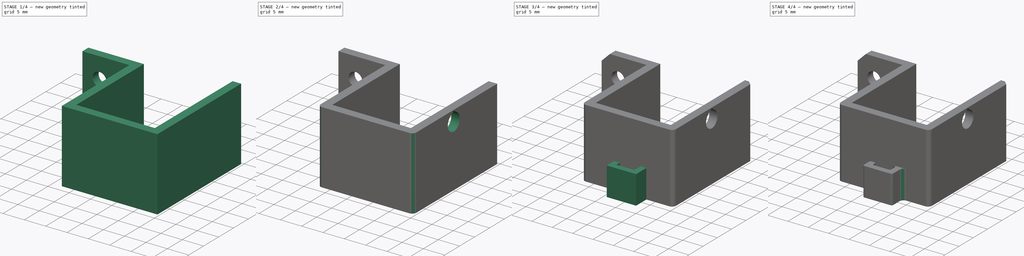
[diagram: build sequence overview — one tinted view per stage of 4, left to right]
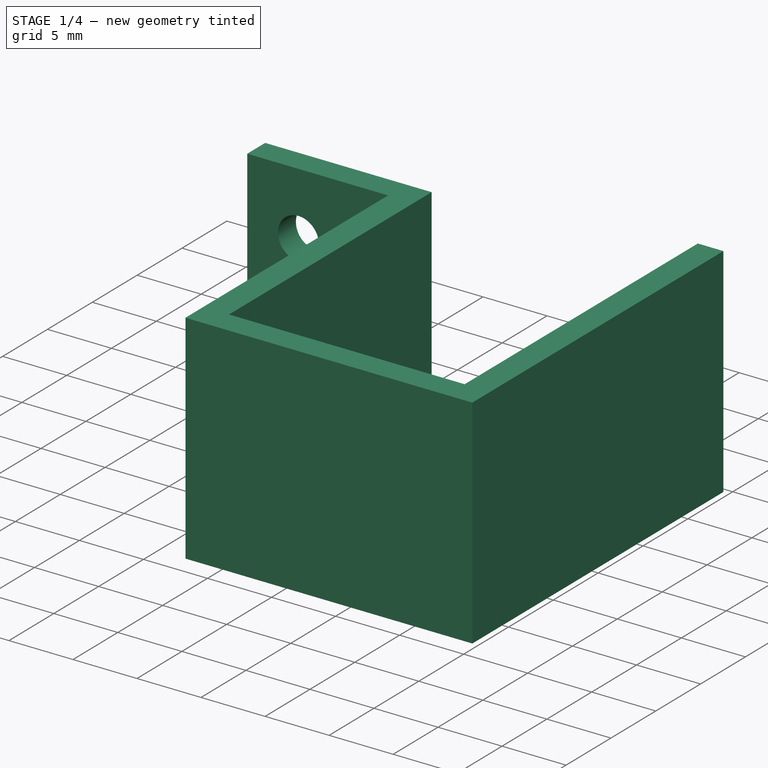
[diagram: stage 1 of 4 — iso view after this stage's code; geometry added in this stage tinted green]
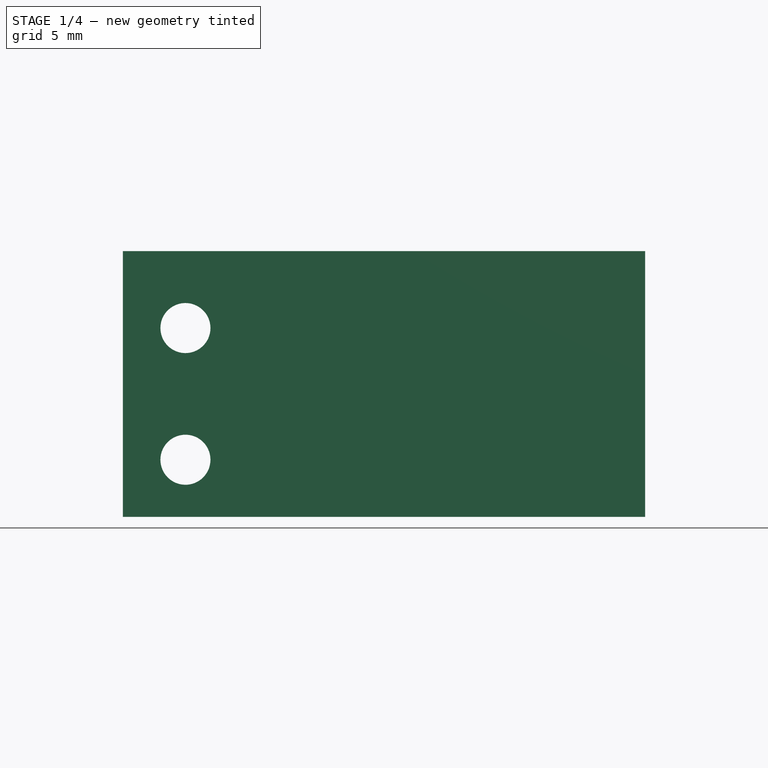
[diagram: stage 1 of 4 — front view after this stage's code; geometry added in this stage tinted green]
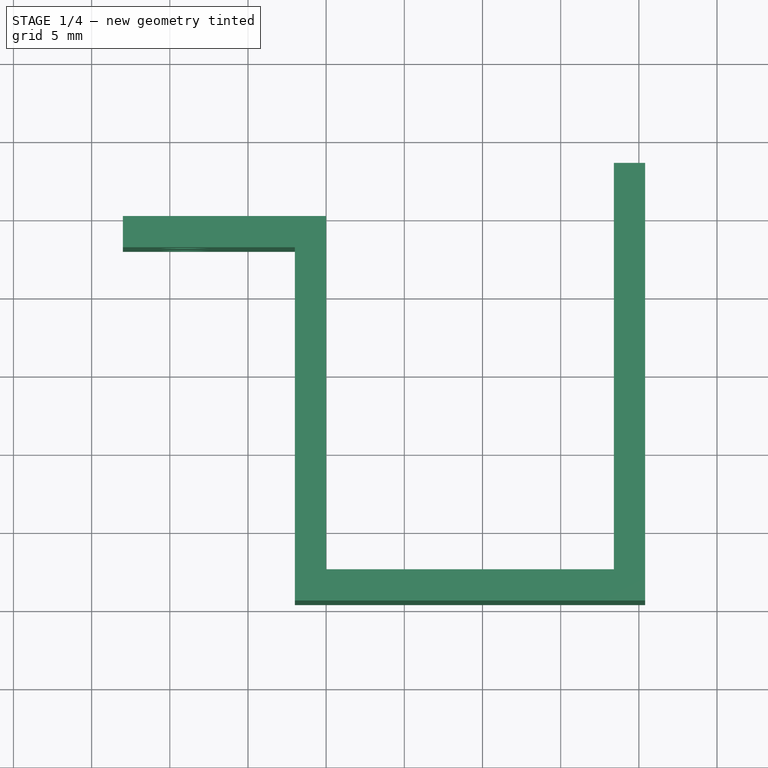
[diagram: stage 1 of 4 — top view after this stage's code; geometry added in this stage tinted green]
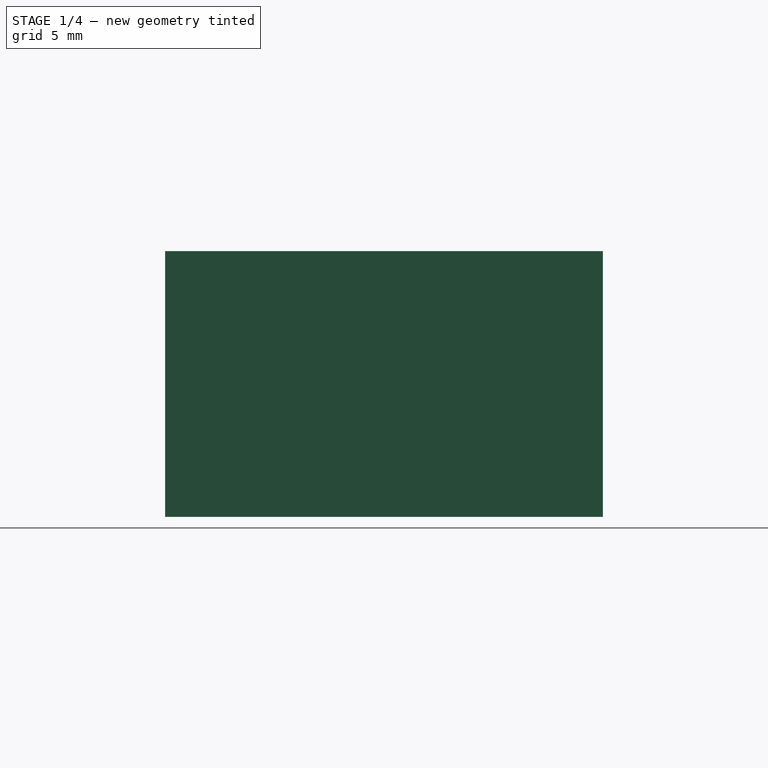
[diagram: stage 1 of 4 — right view after this stage's code; geometry added in this stage tinted green]
FCSTD DOCUMENT  (FreeCAD 0.18R4 (GitTag))
Label: montura_motor
License: All rights reserved
LicenseURL: http://en.wikipedia.org/wiki/All_rights_reserved
objects: Sketcher::SketchObject×4, PartDesign::Fillet×3, PartDesign::Pad×2, PartDesign::Pocket×2, PartDesign::Chamfer×2, PartDesign::Body×1
note: 18 computed .brp shape members not serialized (recipe doc carries the construction recipe); baked Part::Feature solids carry a one-line shape summary decoded from their .brp

FEATURE [Sketcher::SketchObject] Sketch
  MapMode = 5
  Support = -> [XY_Plane]
  sketch-geometry (10):
    g0: LineSegment StartX=-2 StartY=-24.6 StartZ=0 EndX=-2 EndY=-2 EndZ=0
    g1: LineSegment StartX=-2 StartY=-2 StartZ=0 EndX=-13 EndY=-2 EndZ=0
    g2: LineSegment StartX=-13 StartY=-2 StartZ=0 EndX=-13 EndY=0 EndZ=0
    g3: LineSegment StartX=-13 StartY=0 StartZ=0 EndX=0 EndY=0 EndZ=0
    g4: LineSegment StartX=0 StartY=0 StartZ=0 EndX=0 EndY=-22.6 EndZ=0
    g5: LineSegment StartX=0 StartY=-22.6 StartZ=0 EndX=18.4 EndY=-22.6 EndZ=0
    g6: LineSegment StartX=18.4 StartY=-22.6 StartZ=0 EndX=18.4 EndY=3.4 EndZ=0
    g7: LineSegment StartX=18.4 StartY=3.4 StartZ=0 EndX=20.4 EndY=3.4 EndZ=0
    g8: LineSegment StartX=20.4 StartY=3.4 StartZ=0 EndX=20.4 EndY=-24.6 EndZ=0
    g9: LineSegment StartX=-2 StartY=-24.6 StartZ=0 EndX=20.4 EndY=-24.6 EndZ=0
  constraints (29):
    c: Coincident(g0,g1)
    c: Coincident(g1,g2)
    c: Coincident(g2,g3)
    c: Coincident(g3,g4)
    c: Coincident(g4,g5)
    c: Coincident(g5,g6)
    c: Coincident(g6,g7)
    c: Coincident(g7,g8)
    c: Coincident(g8,g9)
    c: Coincident(g0,g9)
    c: Horizontal(g7)
    c: Horizontal(g9)
    c: Horizontal(g5)
    c: Horizontal(g3)
    c: Horizontal(g1)
    c: Vertical(g2)
    c: Vertical(g4)
    c: Vertical(g0)
    c: Vertical(g6)
    c: Vertical(g8)
    c: Distance(g5) = 18.4
    c: Distance(g4) = 22.6
    c: Distance(g2) = 2
    c: DistanceX(g0,g4) = 2
    c: DistanceX(g5,g8) = 2
    c: DistanceY(g0,g4) = 2
    c: Distance(g6) = 26
    c: Distance(g3) = 13
    c: Coincident(g3,g-1)
FEATURE [PartDesign::Pad] Pad
  Length = 17
  Length2 = 100
  Profile = -> Sketch
  Type = 0
FEATURE [Sketcher::SketchObject] Sketch001
  MapMode = 5
  Placement = pos=(0,-2,0) rot=(1,0,0;1.5708rad)
  Support = -> [Pad]
  sketch-geometry (2):
    g0: Circle CenterX=-9 CenterY=3.65577 CenterZ=0 NormalX=0 NormalY=0 NormalZ=1 AngleXU=0 Radius=1.6
    g1: Circle CenterX=-9 CenterY=12.0779 CenterZ=0 NormalX=0 NormalY=0 NormalZ=1 AngleXU=0 Radius=1.6
  constraints (4):
    c: Radius(g1) = 1.6
    c: Equal(g1,g0)
    c: DistanceX(g0,g-1) = 9
    c: Vertical(g0,g1)
FEATURE [PartDesign::Pocket] Pocket
  BaseFeature = -> Pad
  Length = 5
  Length2 = 100
  Profile = -> Sketch001
  Type = 0
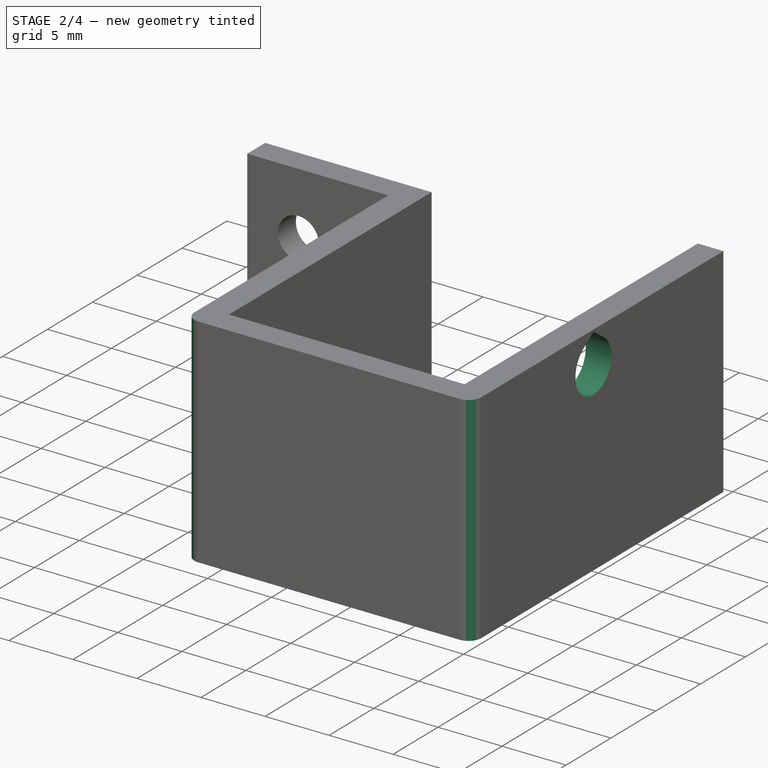
[diagram: stage 2 of 4 — iso view after this stage's code; geometry added in this stage tinted green]
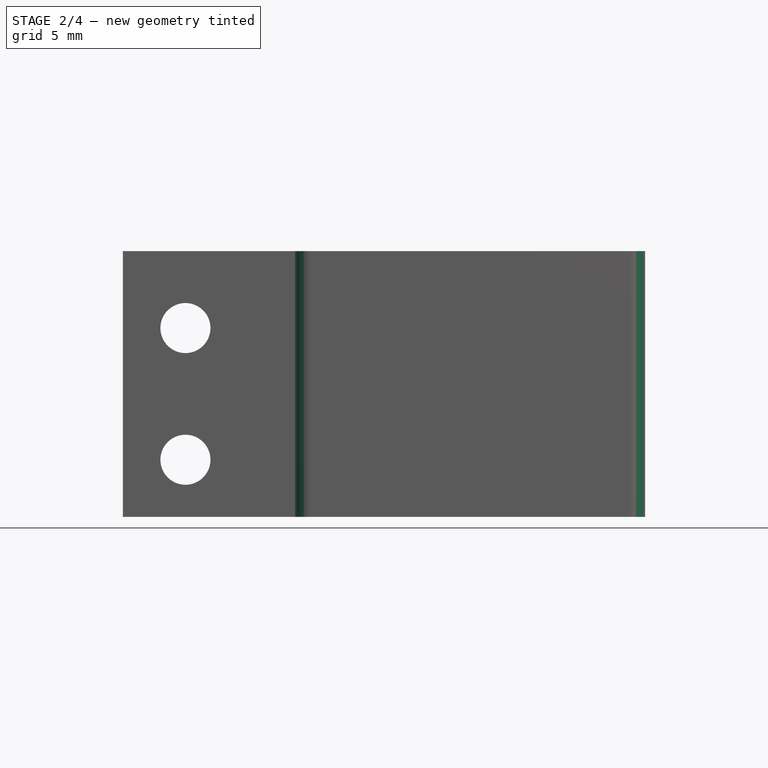
[diagram: stage 2 of 4 — front view after this stage's code; geometry added in this stage tinted green]
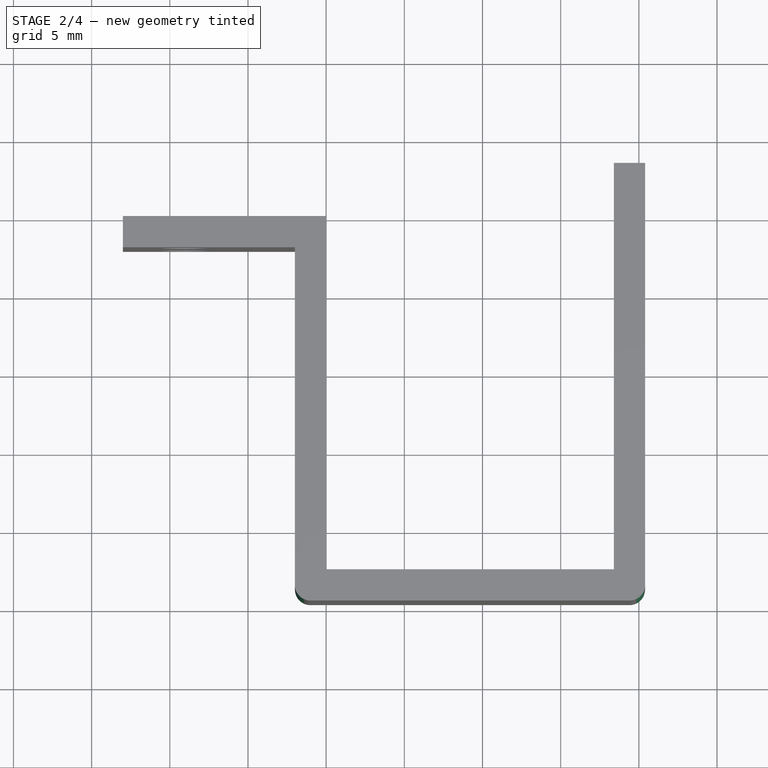
[diagram: stage 2 of 4 — top view after this stage's code; geometry added in this stage tinted green]
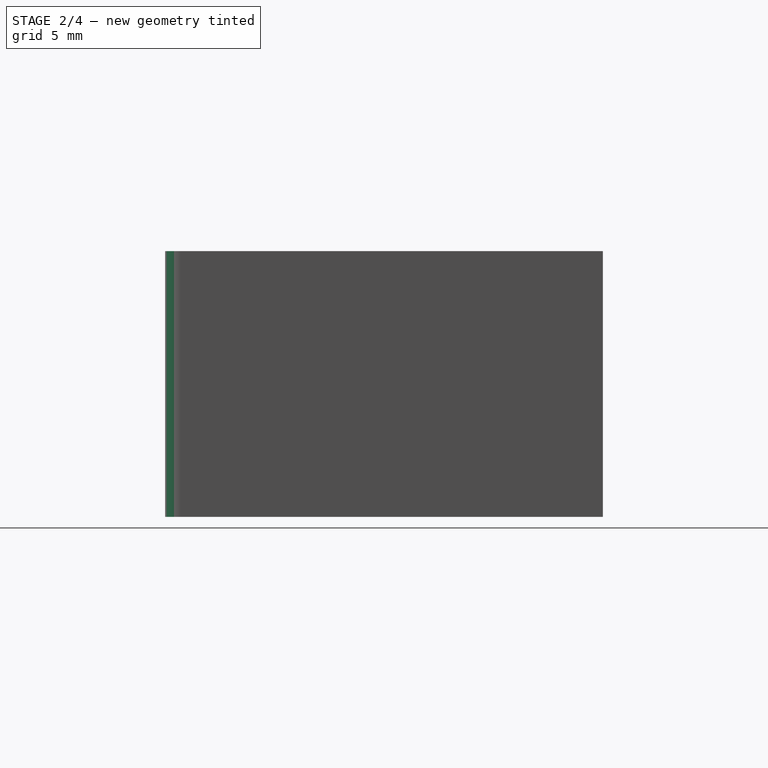
[diagram: stage 2 of 4 — right view after this stage's code; geometry added in this stage tinted green]
FEATURE [Sketcher::SketchObject] Sketch003
  MapMode = 5
  Placement = pos=(18.4,0,0) rot=(0.57735,-0.57735,-0.57735;2.0944rad)
  sketch-geometry (3):
    g0: ArcOfCircle CenterX=11.1 CenterY=14.4 CenterZ=0 NormalX=0 NormalY=0 NormalZ=1 AngleXU=0 Radius=2 StartAngle=2.18166 EndAngle=7.24312
    g1: LineSegment StartX=9.95285 StartY=16.0383 StartZ=0 EndX=11.1 EndY=16.8415 EndZ=0
    g2: LineSegment StartX=11.1 StartY=16.8415 StartZ=0 EndX=12.2472 EndY=16.0383 EndZ=0
  constraints (8):
    c: DistanceX(g-1,g0) = 11.1
    c: Radius(g0) = 2
    c: DistanceY(g-1,g0) = 14.4
    c: Coincident(g1,g2)
    c: Tangent(g0,g1) = 1.5708
    c: Tangent(g0,g2) = 1.5708
    c: Vertical(g0,g1)
    c: Angle(g2,g-1) = 0.610865
FEATURE [PartDesign::Pocket] Pocket002
  BaseFeature = -> Pocket
  Length = 5
  Length2 = 100
  Profile = -> Sketch003
  Type = 0
FEATURE [PartDesign::Fillet] Fillet
  Base = -> Pocket002 [Edge1,Edge5]
  BaseFeature = -> Pocket002
  Radius = 1
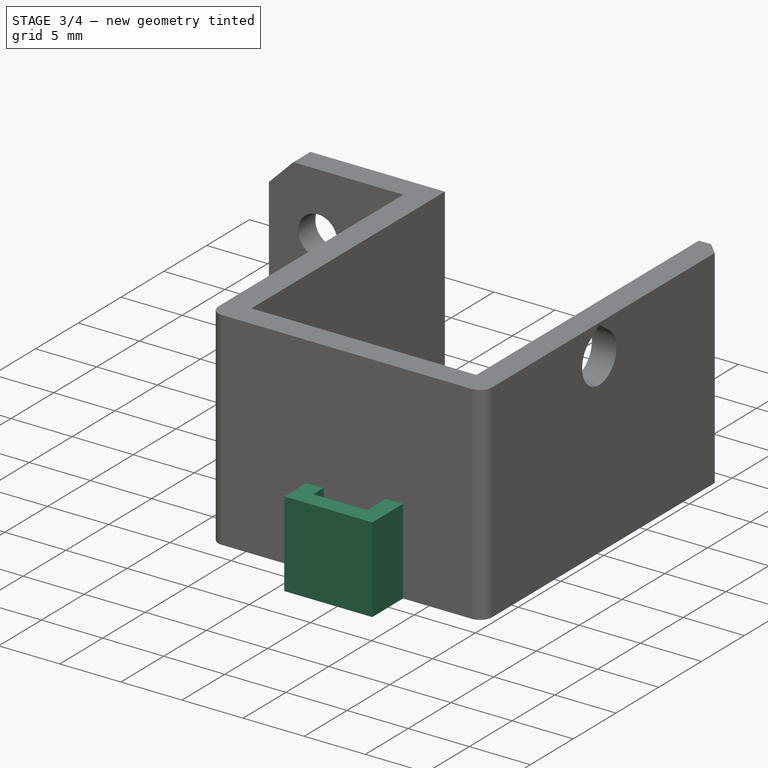
[diagram: stage 3 of 4 — iso view after this stage's code; geometry added in this stage tinted green]
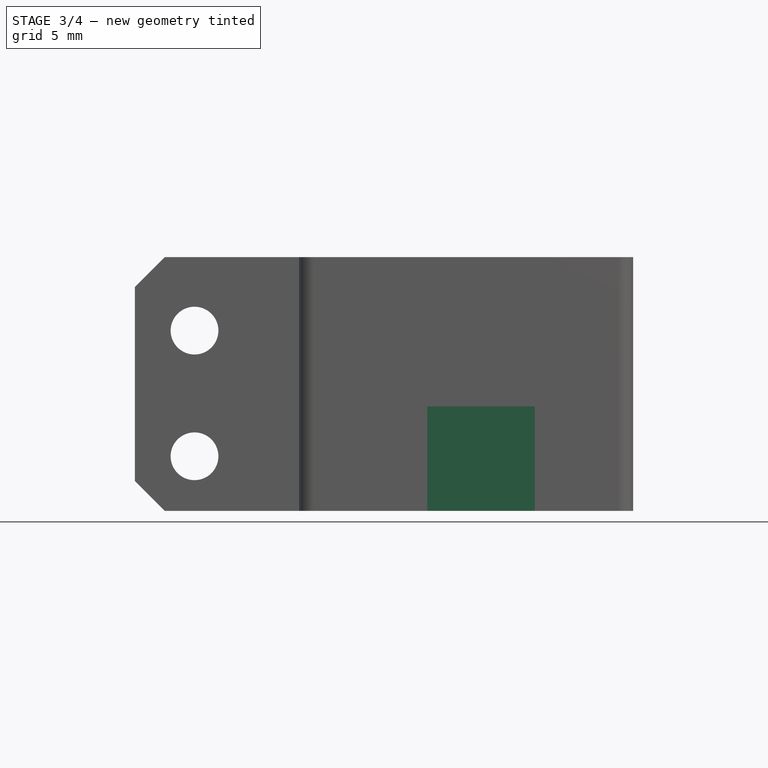
[diagram: stage 3 of 4 — front view after this stage's code; geometry added in this stage tinted green]
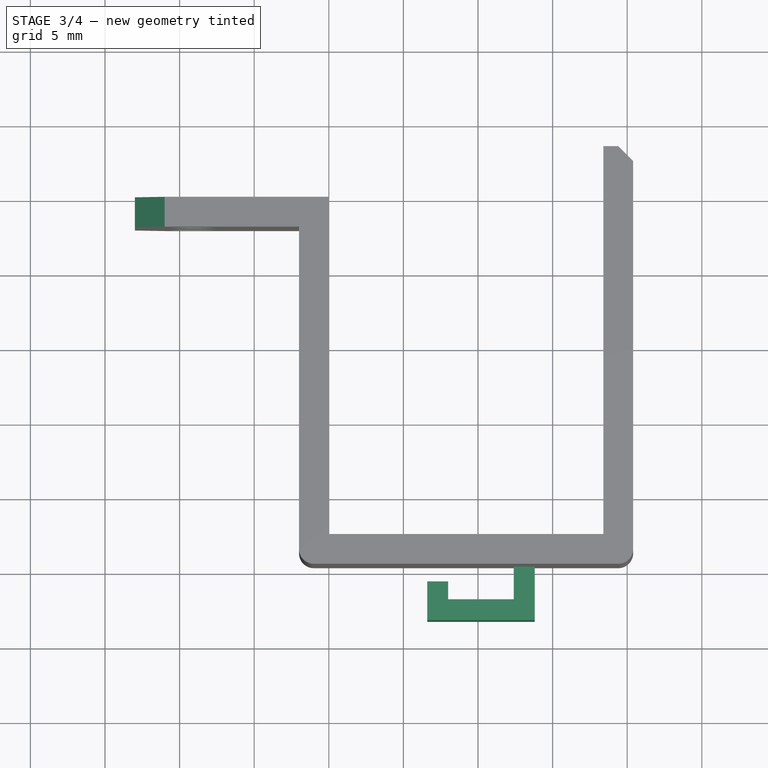
[diagram: stage 3 of 4 — top view after this stage's code; geometry added in this stage tinted green]
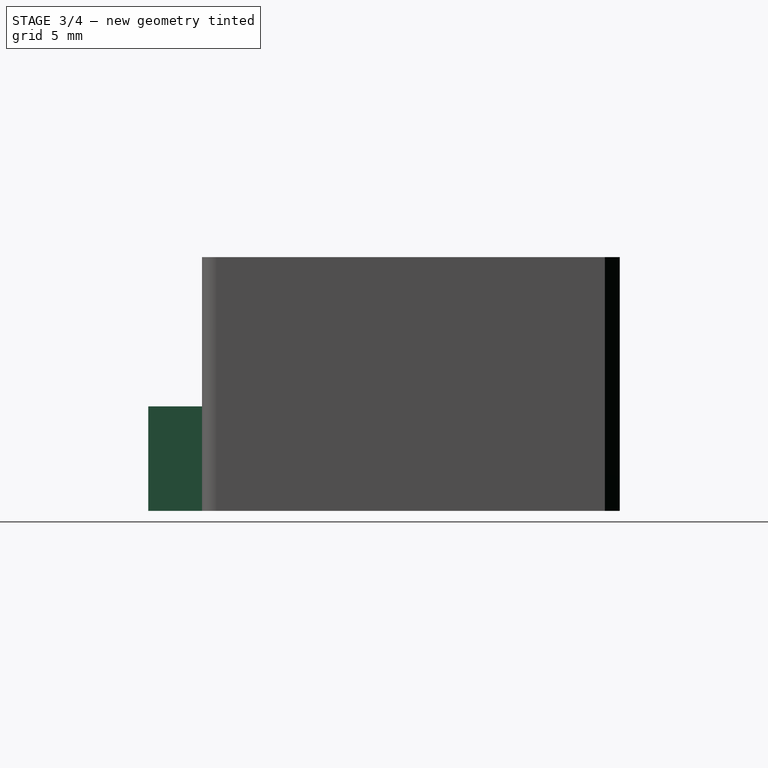
[diagram: stage 3 of 4 — right view after this stage's code; geometry added in this stage tinted green]
FEATURE [PartDesign::Chamfer] Chamfer001
  Base = -> Fillet [Edge23,Edge8]
  BaseFeature = -> Fillet
  Size = 2
FEATURE [PartDesign::Chamfer] Chamfer002
  Base = -> Chamfer001 [Edge45]
  BaseFeature = -> Chamfer001
  Size = 1
FEATURE [Sketcher::SketchObject] Sketch004
  MapMode = 5
  Placement = pos=(0,0,0) rot=(1,0,0;3.14159rad)
  Support = -> [Chamfer002]
  sketch-geometry (8):
    g0: LineSegment StartX=13.8 StartY=24.6 StartZ=0 EndX=12.4 EndY=24.6 EndZ=0
    g1: LineSegment StartX=13.8 StartY=24.6 StartZ=0 EndX=13.8 EndY=28.2 EndZ=0
    g2: LineSegment StartX=13.8 StartY=28.2 StartZ=0 EndX=6.6 EndY=28.2 EndZ=0
    g3: LineSegment StartX=6.6 StartY=28.2 StartZ=0 EndX=6.6 EndY=25.6 EndZ=0
    g4: LineSegment StartX=6.6 StartY=25.6 StartZ=0 EndX=8 EndY=25.6 EndZ=0
    g5: LineSegment StartX=8 StartY=25.6 StartZ=0 EndX=8 EndY=26.8 EndZ=0
    g6: LineSegment StartX=8 StartY=26.8 StartZ=0 EndX=12.4 EndY=26.8 EndZ=0
    g7: LineSegment StartX=12.4 StartY=26.8 StartZ=0 EndX=12.4 EndY=24.6 EndZ=0
  constraints (24):
    c: Horizontal(g0)
    c: Distance(g0) = 1.4
    c: DistanceY(g-1,g0) = 24.6
    c: DistanceX(g-1,g0) = 12.4
    c: Coincident(g1,g2)
    c: Coincident(g2,g3)
    c: Coincident(g3,g4)
    c: Coincident(g4,g5)
    c: Coincident(g5,g6)
    c: Coincident(g6,g7)
    c: Coincident(g0,g7)
    c: Vertical(g7)
    c: Vertical(g5)
    c: Vertical(g3)
    c: Horizontal(g4)
    c: Horizontal(g6)
    c: Horizontal(g2)
    c: Vertical(g1)
    c: Distance(g1) = 3.6
    c: Distance(g2) = 7.2
    c: Coincident(g0,g1)
    c: Distance(g3) = 2.6
    c: Equal(g4,g0)
    c: DistanceY(g6,g1) = 1.4
FEATURE [PartDesign::Pad] Pad001
  BaseFeature = -> Chamfer002
  Length = 7
  Length2 = 100
  Profile = -> Sketch004
  Reversed = true
  Type = 0
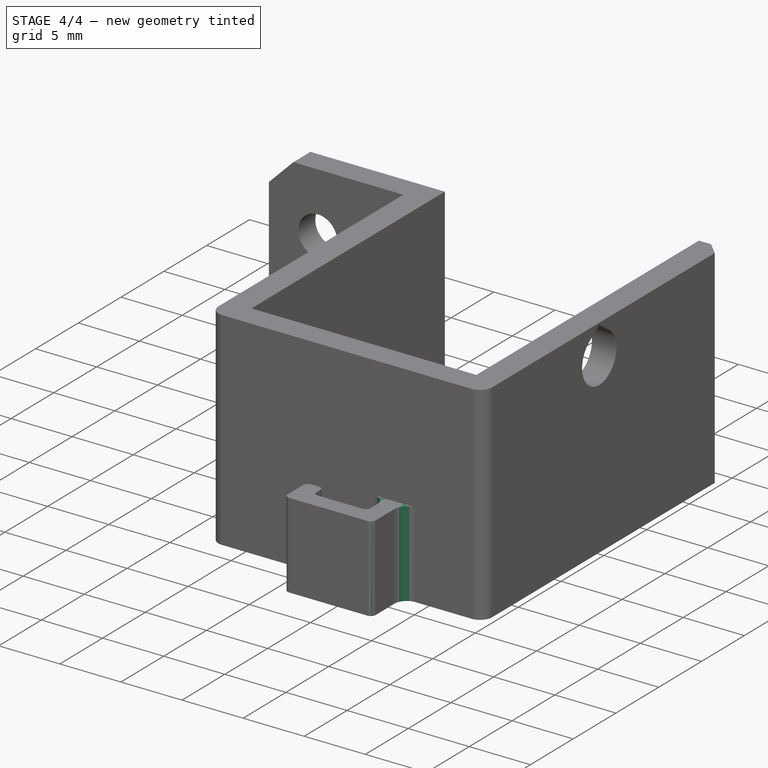
[diagram: stage 4 of 4 — iso view after this stage's code; geometry added in this stage tinted green]
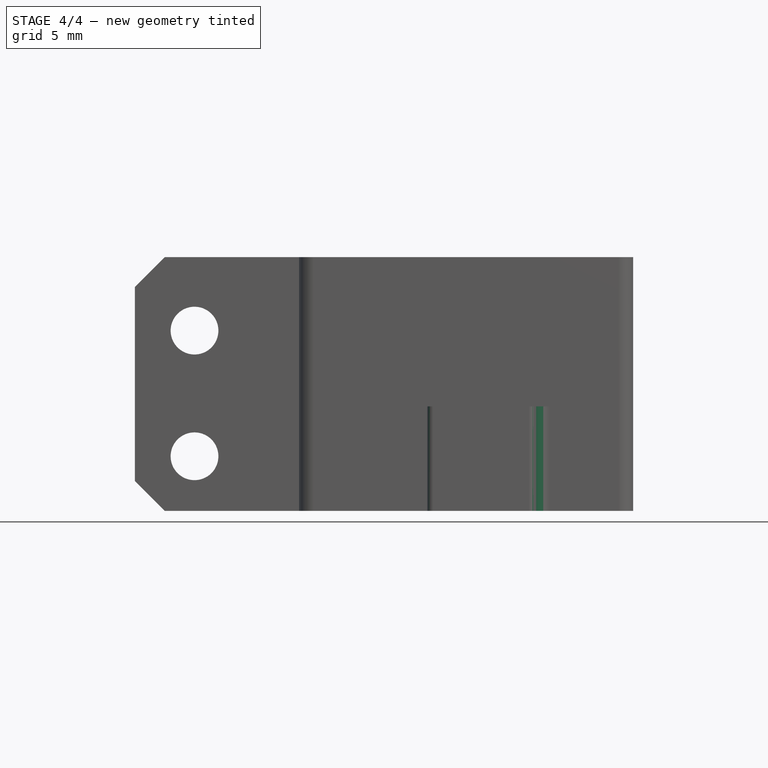
[diagram: stage 4 of 4 — front view after this stage's code; geometry added in this stage tinted green]
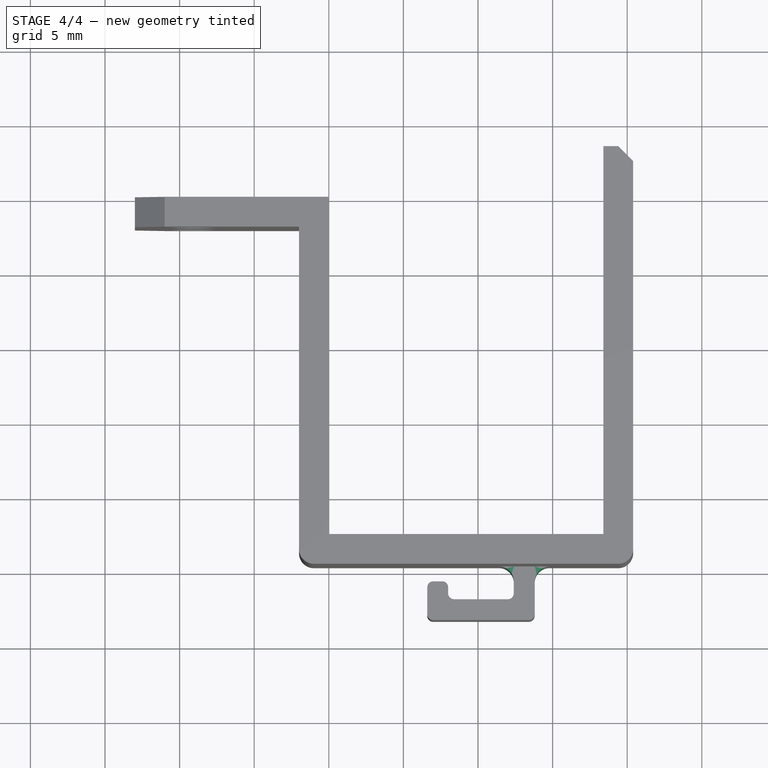
[diagram: stage 4 of 4 — top view after this stage's code; geometry added in this stage tinted green]
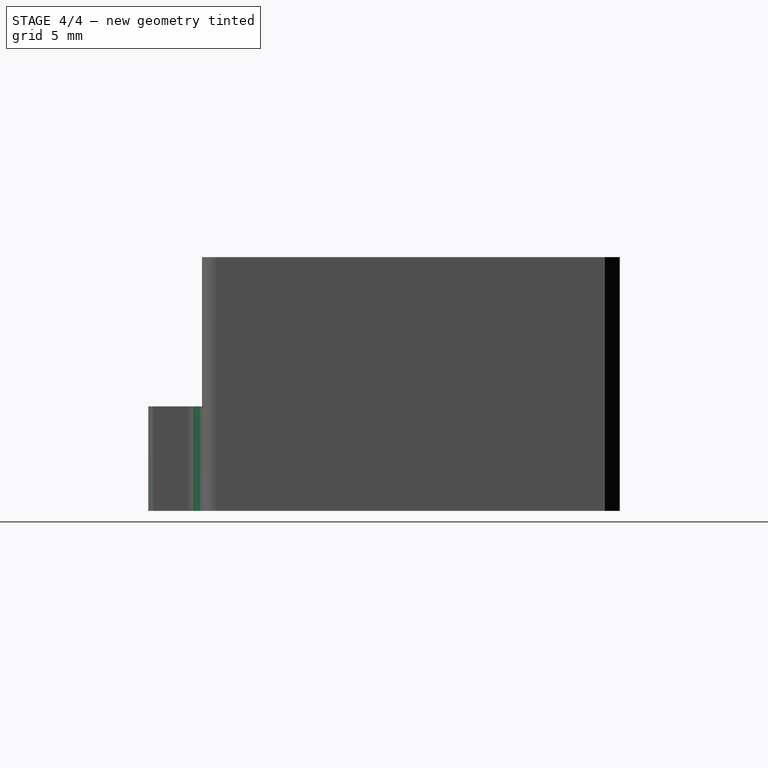
[diagram: stage 4 of 4 — right view after this stage's code; geometry added in this stage tinted green]
FEATURE [PartDesign::Fillet] Fillet001
  Base = -> Pad001 [Edge28,Edge30]
  BaseFeature = -> Pad001
  Radius = 1
FEATURE [PartDesign::Fillet] Fillet002
  Base = -> Fillet001 [Edge89,Edge88,Edge87,Edge84,Edge85,Edge86]
  BaseFeature = -> Fillet001
  Radius = 0.4
FEATURE [PartDesign::Body] Body
  Group = -> [Sketch,Pad,Sketch001,Pocket,Sketch003,Pocket002,Fillet,Chamfer001,Chamfer002,Sketch004,Pad001,Fillet001,Fillet002]
  Origin = -> Origin
  Tip = -> Fillet002
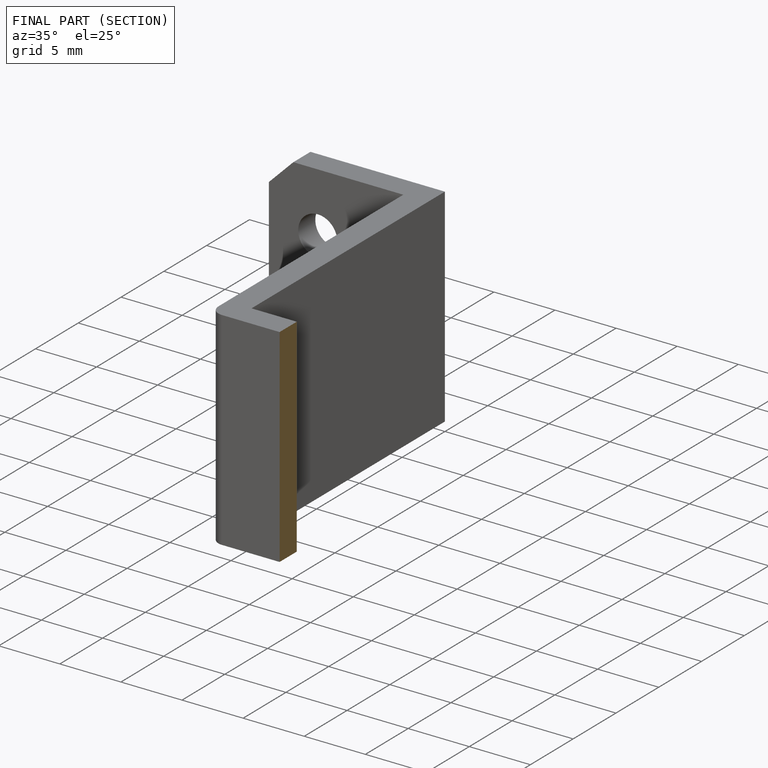
[diagram: finished part — half-section view (interior)]
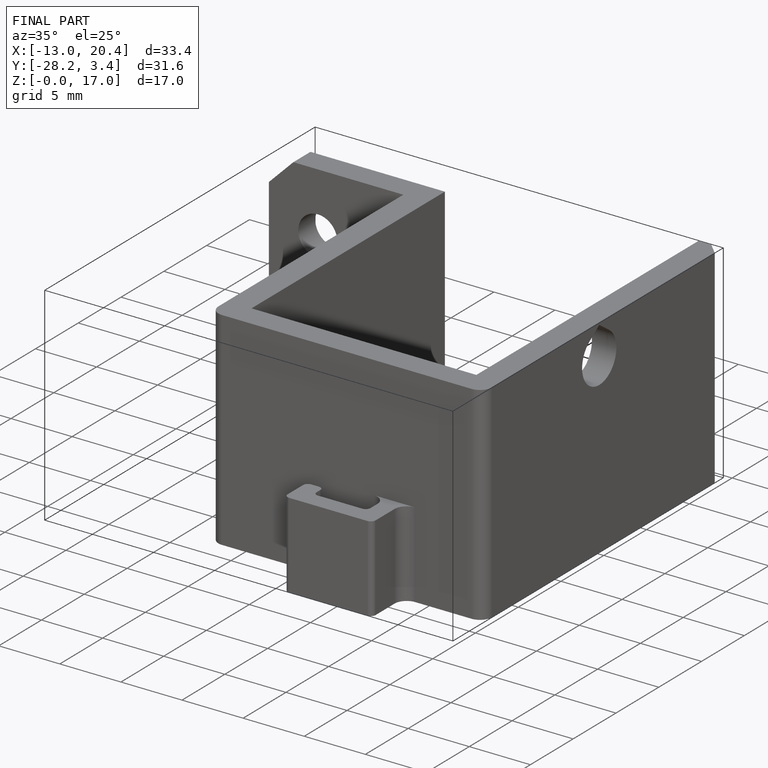
[diagram: finished part — iso view with bounding-box wireframe]
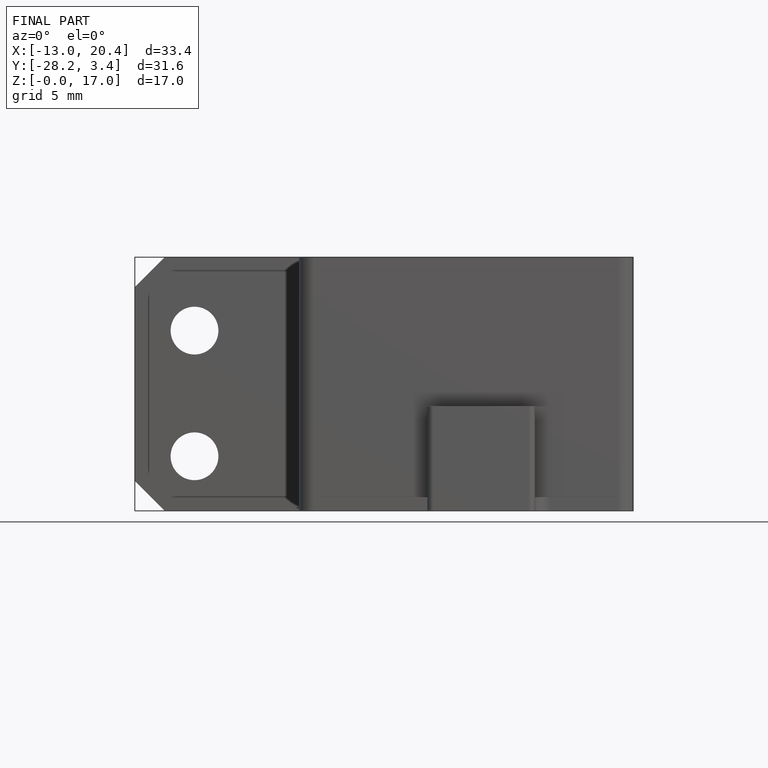
[diagram: finished part — front view with bounding-box wireframe]
